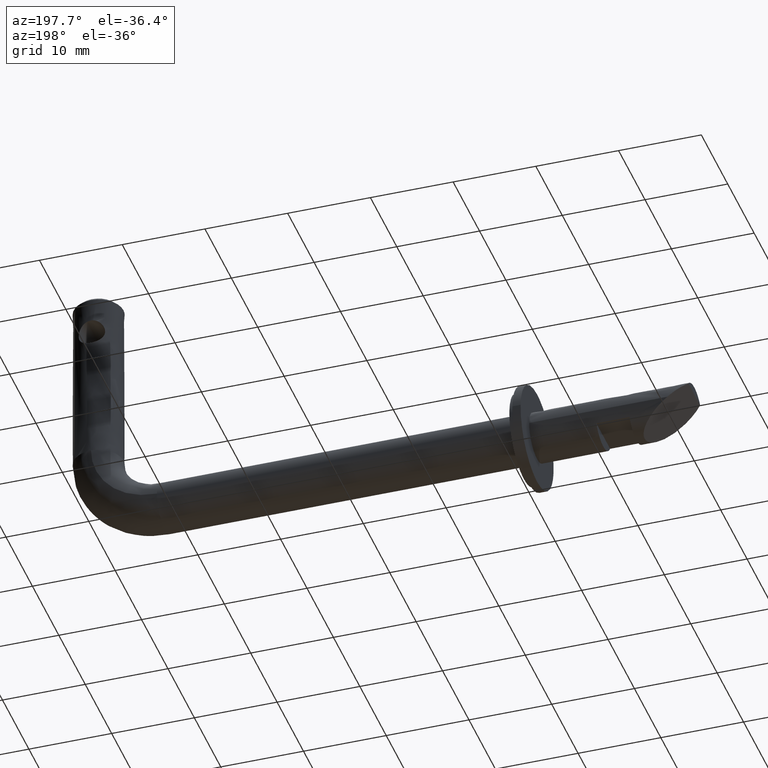
[diagram: clean part render]
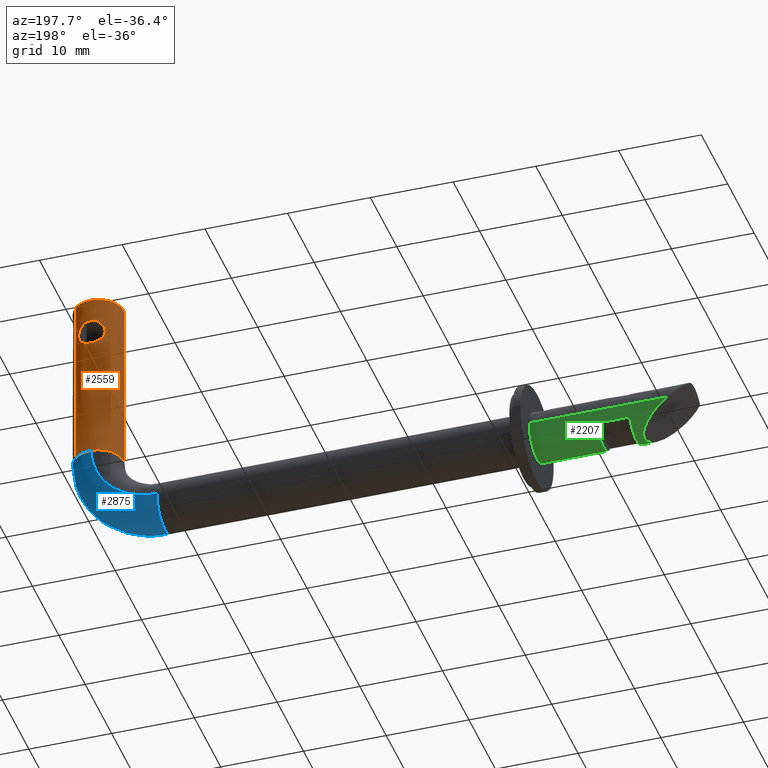
[diagram: same view with three faces highlighted in distinct colors, each labeled with its STEP entity id]
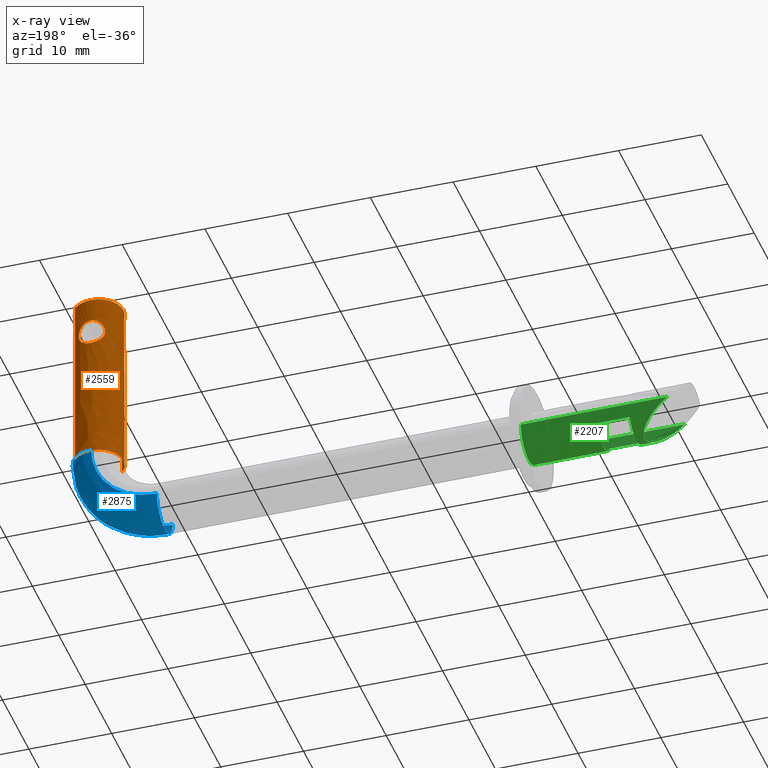
[diagram: x-ray of the same camera — body ghosted, the three highlighted faces saturated]
A machine part, auxiliary view with three faces highlighted in distinct colors.
The next image is the same camera in x-ray (body ghosted, the three faces saturated) — at least one of them is partly hidden behind the body in this view.
Their STEP definitions:

[orange] entity #2559 — the highlighted face is a freeform B-spline surface patch.
#1456=CARTESIAN_POINT('',(71.323144864201936,2.922654459481953,45.499999999945231));
#1457=VERTEX_POINT('',#1456);
#1458=CARTESIAN_POINT('',(71.999969000000092,3.000000000000007,45.500000000000000));
#1459=VERTEX_POINT('',#1458);
#1460=CARTESIAN_POINT('',(71.323144864201936,2.922654459481953,45.499999999945238));
#1461=CARTESIAN_POINT('',(71.657137517479583,3.000000000000007,45.500000000000000));
#1462=CARTESIAN_POINT('',(71.999969000000092,3.000000000000007,45.500000000000000));
#1470=(BOUNDED_CURVE()B_SPLINE_CURVE(2,(#1460,#1461,#1462),.UNSPECIFIED.,.F.,.U.)B_SPLINE_CURVE_WITH_KNOTS((3,3),(0.961422971732899,1.0),.UNSPECIFIED.)CURVE()GEOMETRIC_REPRESENTATION_ITEM()RATIONAL_B_SPLINE_CURVE((0.923556557359013,0.954804200074365,1.0))REPRESENTATION_ITEM(''));
#1471=EDGE_CURVE('',#1457,#1459,#1470,.T.);
#1529=CARTESIAN_POINT('',(69.000083230672885,0.026179607554547,45.499999999856072));
#1530=VERTEX_POINT('',#1529);
#1536=CARTESIAN_POINT('',(69.823845677467119,-2.065063506318367,45.500000000000000));
#1537=VERTEX_POINT('',#1536);
#1538=CARTESIAN_POINT('',(69.823845677467119,-2.065063506318367,45.500000000000000));
#1539=CARTESIAN_POINT('',(68.999969000000078,-1.196878285135874,45.500000000000000));
#1540=CARTESIAN_POINT('',(68.999969000000092,6.888411E-015,45.500000000000000));
#1541=CARTESIAN_POINT('',(68.999969000000092,0.013090053520332,45.500000000000000));
#1542=CARTESIAN_POINT('',(69.000083230672885,0.026179607554547,45.499999999856080));
#1550=(BOUNDED_CURVE()B_SPLINE_CURVE(2,(#1538,#1539,#1540,#1541,#1542),.UNSPECIFIED.,.F.,.U.)B_SPLINE_CURVE_WITH_KNOTS((3,2,3),(0.628950503960748,0.750000000000000,0.751539894459250),.UNSPECIFIED.)CURVE()GEOMETRIC_REPRESENTATION_ITEM()RATIONAL_B_SPLINE_CURVE((0.853699663636914,0.858181693877269,1.0,0.998195901420789,0.996414027812827))REPRESENTATION_ITEM(''));
#1551=EDGE_CURVE('',#1537,#1530,#1550,.T.);
#1568=CARTESIAN_POINT('',(74.176092322533066,2.065063506318381,45.500000000000000));
#1569=VERTEX_POINT('',#1568);
#1585=CARTESIAN_POINT('',(71.999969000000092,3.000000000000007,45.500000000000000));
#1586=CARTESIAN_POINT('',(73.288871078421280,3.000000000000007,45.500000000000014));
#1587=CARTESIAN_POINT('',(74.176092322533066,2.065063506318381,45.500000000000000));
#1595=(BOUNDED_CURVE()B_SPLINE_CURVE(2,(#1585,#1586,#1587),.UNSPECIFIED.,.F.,.U.)B_SPLINE_CURVE_WITH_KNOTS((3,3),(0.0,0.128950503960748),.UNSPECIFIED.)CURVE()GEOMETRIC_REPRESENTATION_ITEM()RATIONAL_B_SPLINE_CURVE((1.0,0.848925087309279,0.853699663636914))REPRESENTATION_ITEM(''));
#1596=EDGE_CURVE('',#1459,#1569,#1595,.T.);
#1615=CARTESIAN_POINT('',(69.000083230672885,0.026179607554547,45.499999999856072));
#1616=CARTESIAN_POINT('',(69.020707261520627,2.389459255069300,45.500000000000000));
#1617=CARTESIAN_POINT('',(71.323144864201936,2.922654459481953,45.499999999945224));
#1625=(BOUNDED_CURVE()B_SPLINE_CURVE(2,(#1615,#1616,#1617),.UNSPECIFIED.,.F.,.U.)B_SPLINE_CURVE_WITH_KNOTS((3,3),(0.751539894459250,0.961422971732900),.UNSPECIFIED.)CURVE()GEOMETRIC_REPRESENTATION_ITEM()RATIONAL_B_SPLINE_CURVE((0.996414027812826,0.753549905596298,0.923556557359015))REPRESENTATION_ITEM(''));
#1626=EDGE_CURVE('',#1530,#1457,#1625,.T.);
#1664=CARTESIAN_POINT('',(71.994331528390930,2.999994703147641,42.599990068379768));
#1665=VERTEX_POINT('',#1664);
#1666=CARTESIAN_POINT('',(73.587604077087263,2.545479398729322,41.198605947064912));
#1667=VERTEX_POINT('',#1666);
#1668=CARTESIAN_POINT('',(71.994331528390930,2.999994703147641,42.599990068379768));
#1669=CARTESIAN_POINT('',(72.047597322482943,3.000094798433264,42.600177727336330));
#1670=CARTESIAN_POINT('',(72.101354179923149,2.998765943240550,42.597690999701463));
#1671=CARTESIAN_POINT('',(72.208471195416237,2.993226143679104,42.587268708027032));
#1672=CARTESIAN_POINT('',(72.313985564740022,2.984893312388160,42.571563436398257));
#1673=CARTESIAN_POINT('',(72.416453465712209,2.971388915663970,42.545744348733670));
#1674=CARTESIAN_POINT('',(72.517434751334932,2.955476251282470,42.514930107730102));
#1675=CARTESIAN_POINT('',(72.567349082108834,2.946279591777827,42.496954378388288));
#1676=CARTESIAN_POINT('',(72.713737925457878,2.915557217938269,42.435866276198958));
#1677=CARTESIAN_POINT('',(72.805179601045637,2.891318828493735,42.386480368899221));
#1678=CARTESIAN_POINT('',(72.934036426026353,2.851233820786950,42.300070819110999));
#1679=CARTESIAN_POINT('',(72.975653616422036,2.837225415041942,42.269143172193722));
#1680=CARTESIAN_POINT('',(73.055858511598032,2.808363270009035,42.203237517295833));
#1681=CARTESIAN_POINT('',(73.093994396254445,2.793677141748251,42.168641986187552));
#1682=CARTESIAN_POINT('',(73.202831697554387,2.749407944350570,42.060007852296813));
#1683=CARTESIAN_POINT('',(73.268025310643054,2.719592991084082,41.981185053227406));
#1684=CARTESIAN_POINT('',(73.354889204433789,2.676792015835583,41.852554386464767));
#1685=CARTESIAN_POINT('',(73.381992838005203,2.662850296773818,41.807880675544510));
#1686=CARTESIAN_POINT('',(73.431335101486297,2.636655229448489,41.716833564764201));
#1687=CARTESIAN_POINT('',(73.453741040700791,2.624321043930565,41.670229770350304));
#1688=CARTESIAN_POINT('',(73.514207280896997,2.590212411308077,41.527060000525452));
#1689=CARTESIAN_POINT('',(73.545614910046126,2.571302007438929,41.427147687669233));
#1690=CARTESIAN_POINT('',(73.575646260550556,2.552902509534422,41.281017511631283));
#1691=CARTESIAN_POINT('',(73.582439640397936,2.548696877225920,41.239855934344369));
#1692=CARTESIAN_POINT('',(73.587604077087263,2.545479398729322,41.198605947064912));
#1693=B_SPLINE_CURVE_WITH_KNOTS('',3,(#1668,#1669,#1670,#1671,#1672,#1673,#1674,#1675,#1676,#1677,#1678,#1679,#1680,#1681,#1682,#1683,#1684,#1685,#1686,#1687,#1688,#1689,#1690,#1691,#1692),.UNSPECIFIED.,.F.,.U.,(4,2,1,2,2,2,2,2,2,2,2,2,4),(0.500000000000061,0.515625000000060,0.531250000000060,0.546875000000059,0.562500000000058,0.593750000000053,0.609375000000052,0.625000000000051,0.656250000000053,0.671875000000053,0.687500000000053,0.718750000000051,0.730967443694263),.UNSPECIFIED.);
#1694=EDGE_CURVE('',#1665,#1667,#1693,.T.);
#1763=CARTESIAN_POINT('',(70.400029794789674,2.537753961033253,40.986037542234328));
#1764=VERTEX_POINT('',#1763);
#1770=CARTESIAN_POINT('',(70.400029794789674,2.537753961033253,40.986037542234328));
#1771=CARTESIAN_POINT('',(70.400002909320236,2.537736959690668,40.989122623426837));
#1772=CARTESIAN_POINT('',(70.399984988830681,2.537725588813220,40.992209067010378));
#1773=CARTESIAN_POINT('',(70.399819113183753,2.537621006785857,41.048639596513361));
#1774=CARTESIAN_POINT('',(70.402376161701270,2.539239075206544,41.102776727903141));
#1775=CARTESIAN_POINT('',(70.412819111122332,2.545779485398318,41.209335049663522));
#1776=CARTESIAN_POINT('',(70.428499716294752,2.555565302606940,41.314403466990768));
#1777=CARTESIAN_POINT('',(70.454270543567645,2.571213076018931,41.416650394664337));
#1778=CARTESIAN_POINT('',(70.485062189522907,2.589474416957665,41.517531279403919));
#1779=CARTESIAN_POINT('',(70.503077908853314,2.599971811698226,41.567503497107353));
#1780=CARTESIAN_POINT('',(70.563555860512906,2.634172115528542,41.712523630936623));
#1781=CARTESIAN_POINT('',(70.612510108893687,2.660650773724477,41.803511676603762));
#1782=CARTESIAN_POINT('',(70.698651353788506,2.703257028515055,41.932330778691522));
#1783=CARTESIAN_POINT('',(70.729638300666863,2.718003321669526,41.974119680139388));
#1784=CARTESIAN_POINT('',(70.794873339784502,2.747549197376554,42.053752194129537));
#1785=CARTESIAN_POINT('',(70.829207092336290,2.762396307594826,42.091756210529148));
#1786=CARTESIAN_POINT('',(70.937365576671411,2.806588887480753,42.200555802698197));
#1787=CARTESIAN_POINT('',(71.016458885684301,2.835645682963125,42.266321744173247));
#1788=CARTESIAN_POINT('',(71.189051610244348,2.889739014385311,42.383212164390962));
#1789=CARTESIAN_POINT('',(71.280025565096295,2.913979800689734,42.432658611702713));
#1790=CARTESIAN_POINT('',(71.423755521203745,2.944550429849286,42.493547903028272));
#1791=CARTESIAN_POINT('',(71.472885180570216,2.953775750627693,42.511612707901570));
#1792=CARTESIAN_POINT('',(71.573735278781768,2.970005614910075,42.543086240717187));
#1793=CARTESIAN_POINT('',(71.625804374912249,2.977038073690190,42.556547105287393));
#1794=CARTESIAN_POINT('',(71.782355097181281,2.993937812442399,42.588709041921348));
#1795=CARTESIAN_POINT('',(71.887799612137101,2.999794512576420,42.599614709391510));
#1796=CARTESIAN_POINT('',(71.994331528390930,2.999994703147641,42.599990068379768));
#1797=B_SPLINE_CURVE_WITH_KNOTS('',3,(#1770,#1771,#1772,#1773,#1774,#1775,#1776,#1777,#1778,#1779,#1780,#1781,#1782,#1783,#1784,#1785,#1786,#1787,#1788,#1789,#1790,#1791,#1792,#1793,#1794,#1795,#1796),.UNSPECIFIED.,.F.,.U.,(4,2,2,1,2,2,2,2,2,2,2,2,2,4),(0.249095528264644,0.250000000000037,0.265625000000037,0.281250000000037,0.296875000000037,0.312500000000037,0.343750000000040,0.359375000000043,0.375000000000046,0.406250000000049,0.437500000000052,0.453125000000055,0.468750000000059,0.500000000000061),.UNSPECIFIED.);
#1798=EDGE_CURVE('',#1764,#1665,#1797,.T.);
#1825=CARTESIAN_POINT('',(71.999969000000107,3.0,39.399999999999999));
#1826=VERTEX_POINT('',#1825);
#1827=CARTESIAN_POINT('',(73.587604077087263,2.545479398729322,41.198605947064912));
#1828=CARTESIAN_POINT('',(73.595649688624306,2.540467152126669,41.134346010408422));
#1829=CARTESIAN_POINT('',(73.599742182966423,2.537852954808776,41.069871520361062));
#1830=CARTESIAN_POINT('',(73.600124185431113,2.537612312452980,40.952076577708958));
#1831=CARTESIAN_POINT('',(73.597659719644597,2.539172134263927,40.898825164402318));
#1832=CARTESIAN_POINT('',(73.589885265580662,2.544042035819182,40.818725347553240));
#1833=CARTESIAN_POINT('',(73.586597902895178,2.546095976734909,40.791907084465237));
#1834=CARTESIAN_POINT('',(73.578734625337987,2.550979372163208,40.738860590229883));
#1835=CARTESIAN_POINT('',(73.574157613474128,2.553809523874047,40.712576579268131));
#1836=CARTESIAN_POINT('',(73.548131361137052,2.569779637262166,40.582309403562569));
#1837=CARTESIAN_POINT('',(73.517364426442811,2.588369217390258,40.481754570004277));
#1838=CARTESIAN_POINT('',(73.456611353817962,2.622730590791948,40.335961320486923));
#1839=CARTESIAN_POINT('',(73.434044129393229,2.635182031088402,40.288590164765949));
#1840=CARTESIAN_POINT('',(73.384940414621056,2.661317658887617,40.197172894321326));
#1841=CARTESIAN_POINT('',(73.331723257101359,2.688768109910823,40.108731353226887));
#1842=CARTESIAN_POINT('',(73.270344169950860,2.717982674106730,40.025930275714082));
#1843=CARTESIAN_POINT('',(73.204766173314610,2.747680527877822,39.945898349797652));
#1844=CARTESIAN_POINT('',(73.170011217863021,2.762702169089690,39.907466030899229));
#1845=CARTESIAN_POINT('',(73.061284752237015,2.807085735011881,39.798269814068931));
#1846=CARTESIAN_POINT('',(72.982380036351870,2.836007914577849,39.732881740330740));
#1847=CARTESIAN_POINT('',(72.853718010456618,2.876304493930390,39.645824907312111));
#1848=CARTESIAN_POINT('',(72.808824022440845,2.889292755174188,39.618518909092451));
#1849=CARTESIAN_POINT('',(72.716802512404186,2.913487569447392,39.568606589973271));
#1850=CARTESIAN_POINT('',(72.669769787012456,2.924684237807802,39.546010370943350));
#1851=CARTESIAN_POINT('',(72.525579743391646,2.955230419275068,39.485200942770653));
#1852=CARTESIAN_POINT('',(72.425363211269669,2.971554316300569,39.453886233828641));
#1853=CARTESIAN_POINT('',(72.268260331084761,2.988443316062709,39.421748815155411));
#1854=CARTESIAN_POINT('',(72.214790128327166,2.992778029234917,39.413575831239619));
#1855=CARTESIAN_POINT('',(72.107825097037235,2.998538926891856,39.402734558392268));
#1856=CARTESIAN_POINT('',(72.053899697139400,3.000000000000008,39.399999983575142));
#1857=CARTESIAN_POINT('',(71.999969000000107,3.0,39.399999999999999));
#1858=B_SPLINE_CURVE_WITH_KNOTS('',3,(#1827,#1828,#1829,#1830,#1831,#1832,#1833,#1834,#1835,#1836,#1837,#1838,#1839,#1840,#1841,#1842,#1843,#1844,#1845,#1846,#1847,#1848,#1849,#1850,#1851,#1852,#1853,#1854,#1855,#1856,#1857),.UNSPECIFIED.,.F.,.U.,(4,2,2,2,2,2,2,1,2,2,2,2,2,2,2,4),(0.730967443694264,0.750000000000049,0.765625000000047,0.773437500000045,0.781250000000043,0.812500000000035,0.828125000000031,0.843750000000028,0.859375000000024,0.875000000000020,0.906250000000012,0.921875000000010,0.937500000000008,0.968750000000004,0.984375000000002,1.0),.UNSPECIFIED.);
#1859=EDGE_CURVE('',#1667,#1826,#1858,.T.);
#1861=CARTESIAN_POINT('',(71.999969000000107,3.0,39.399999999999999));
#1862=CARTESIAN_POINT('',(71.892107343347050,3.0,39.399999999999999));
#1863=CARTESIAN_POINT('',(71.786420061271670,2.994204917263775,39.410792273531833));
#1864=CARTESIAN_POINT('',(71.630934719092110,2.977671952795410,39.442242064282993));
#1865=CARTESIAN_POINT('',(71.579617436550720,2.970850191223982,39.455289461521303));
#1866=CARTESIAN_POINT('',(71.478009877461147,2.954692026250503,39.486598282352020));
#1867=CARTESIAN_POINT('',(71.428216243238566,2.945425506056949,39.504727791274803));
#1868=CARTESIAN_POINT('',(71.283445705051378,2.914845600400939,39.565581950755913));
#1869=CARTESIAN_POINT('',(71.192263725232252,2.890633395318389,39.614934205100809));
#1870=CARTESIAN_POINT('',(71.063004541658046,2.850286812420503,39.702002938918717));
#1871=CARTESIAN_POINT('',(71.021325421069150,2.836200857916569,39.733152812670333));
#1872=CARTESIAN_POINT('',(70.941987182333463,2.807570664207084,39.798617661144213));
#1873=CARTESIAN_POINT('',(70.904122491816409,2.792963022273581,39.833066471089452));
#1874=CARTESIAN_POINT('',(70.831864131305679,2.763521852458990,39.905402153242377));
#1875=CARTESIAN_POINT('',(70.797470575837622,2.748687411044953,39.943288771992052));
#1876=CARTESIAN_POINT('',(70.732136764073744,2.719170161151406,40.022634919256276));
#1877=CARTESIAN_POINT('',(70.701067373263115,2.704419472692852,40.064310716988359));
#1878=CARTESIAN_POINT('',(70.614723606991731,2.661806845364610,40.192699137693843));
#1879=CARTESIAN_POINT('',(70.565822429570588,2.635405590228977,40.283075200480113));
#1880=CARTESIAN_POINT('',(70.505405051305715,2.601309930762633,40.426442686670811));
#1881=CARTESIAN_POINT('',(70.487440132549438,2.590866279601660,40.475542509073676));
#1882=CARTESIAN_POINT('',(70.463933005029617,2.576950976555259,40.551342858275021));
#1883=CARTESIAN_POINT('',(70.456665953794072,2.572600792702131,40.577012137747282));
#1884=CARTESIAN_POINT('',(70.443498017161716,2.564655378529938,40.628380431591609));
#1885=CARTESIAN_POINT('',(70.437569102545581,2.561043720083624,40.654161674266390));
#1886=CARTESIAN_POINT('',(70.411772010728058,2.545232662595836,40.780557578353957));
#1887=CARTESIAN_POINT('',(70.400927384093521,2.538324366010588,40.882531324051087));
#1888=CARTESIAN_POINT('',(70.400029794789674,2.537753961033253,40.986037542234328));
#1889=B_SPLINE_CURVE_WITH_KNOTS('',3,(#1861,#1862,#1863,#1864,#1865,#1866,#1867,#1868,#1869,#1870,#1871,#1872,#1873,#1874,#1875,#1876,#1877,#1878,#1879,#1880,#1881,#1882,#1883,#1884,#1885,#1886,#1887,#1888),.UNSPECIFIED.,.F.,.U.,(4,2,2,2,2,2,2,2,2,2,2,2,2,4),(0.0,0.031250000000004,0.046875000000008,0.062500000000013,0.093750000000020,0.109375000000022,0.125000000000024,0.140625000000025,0.156250000000027,0.187500000000030,0.203125000000032,0.210937500000033,0.218750000000034,0.249095528264644),.UNSPECIFIED.);
#1890=EDGE_CURVE('',#1826,#1764,#1889,.T.);
#2412=CARTESIAN_POINT('',(69.823845221315906,-2.065063025634889,24.0));
#2413=VERTEX_POINT('',#2412);
#2446=CARTESIAN_POINT('',(74.176092778684279,2.065063025634894,24.0));
#2447=VERTEX_POINT('',#2446);
#2461=CARTESIAN_POINT('',(74.176092778684279,2.065063025634894,24.0));
#2462=CARTESIAN_POINT('',(74.176092322533066,2.065063506318381,45.500000000000000));
#2463=QUASI_UNIFORM_CURVE('',1,(#2461,#2462),.UNSPECIFIED.,.F.,.U.);
#2464=EDGE_CURVE('',#2447,#1569,#2463,.T.);
#2468=CARTESIAN_POINT('',(69.823845221315906,-2.065063025634889,24.0));
#2469=CARTESIAN_POINT('',(69.823845677467119,-2.065063506318367,45.500000000000000));
#2470=QUASI_UNIFORM_CURVE('',1,(#2468,#2469),.UNSPECIFIED.,.F.,.U.);
#2471=EDGE_CURVE('',#2413,#1537,#2470,.T.);
#2482=CARTESIAN_POINT('',(74.176092113036958,2.065063727081264,23.462499999561530));
#2483=CARTESIAN_POINT('',(72.111028385955677,4.241186840118128,23.462499999561533));
#2484=CARTESIAN_POINT('',(69.934905272918826,2.176123113036865,23.462499999561530));
#2485=CARTESIAN_POINT('',(67.758782159881960,0.111059385955604,23.462499999561533));
#2486=CARTESIAN_POINT('',(69.823845886963227,-2.065063727081258,23.462499999561530));
#2487=CARTESIAN_POINT('',(74.176092113036958,2.065063727081268,46.050937500010967));
#2488=CARTESIAN_POINT('',(72.111028385955677,4.241186840118131,46.050937500010981));
#2489=CARTESIAN_POINT('',(69.934905272918826,2.176123113036869,46.050937500010967));
#2490=CARTESIAN_POINT('',(67.758782159881960,0.111059385955608,46.050937500010981));
#2491=CARTESIAN_POINT('',(69.823845886963227,-2.065063727081254,46.050937500010967));
#2499=(BOUNDED_SURFACE()B_SPLINE_SURFACE(2,1,((#2482,#2487),(#2483,#2488),(#2484,#2489),(#2485,#2490),(#2486,#2491)),.UNSPECIFIED.,.F.,.F.,.U.)B_SPLINE_SURFACE_WITH_KNOTS((3,2,3),(2,2),(0.0,4.970562748477149,9.941125496954298),(0.0,22.588437500449452),.UNSPECIFIED.)GEOMETRIC_REPRESENTATION_ITEM()RATIONAL_B_SPLINE_SURFACE(((1.0,1.0),(0.707106781186548,0.707106781186548),(1.0,1.0),(0.707106781186548,0.707106781186548),(1.0,1.0)))REPRESENTATION_ITEM('')SURFACE());
#2500=CARTESIAN_POINT('',(68.999969000000092,2.939055E-015,24.0));
#2501=VERTEX_POINT('',#2500);
#2502=CARTESIAN_POINT('',(68.999969000000092,2.939055E-015,24.0));
#2503=CARTESIAN_POINT('',(68.999969000000078,-1.196877516990546,23.999999999999996));
#2504=CARTESIAN_POINT('',(69.823845221315906,-2.065063025634889,24.0));
#2512=(BOUNDED_CURVE()B_SPLINE_CURVE(2,(#2502,#2503,#2504),.UNSPECIFIED.,.F.,.U.)B_SPLINE_CURVE_WITH_KNOTS((3,3),(0.0,0.121049429368450),.UNSPECIFIED.)CURVE()GEOMETRIC_REPRESENTATION_ITEM()RATIONAL_B_SPLINE_CURVE((1.0,0.858181771986972,0.853699668574118))REPRESENTATION_ITEM(''));
#2513=EDGE_CURVE('',#2501,#2413,#2512,.T.);
#2514=ORIENTED_EDGE('',*,*,#2513,.T.);
#2515=ORIENTED_EDGE('',*,*,#2471,.T.);
#2516=ORIENTED_EDGE('',*,*,#1551,.T.);
#2517=ORIENTED_EDGE('',*,*,#1626,.T.);
#2518=ORIENTED_EDGE('',*,*,#1471,.T.);
#2519=ORIENTED_EDGE('',*,*,#1596,.T.);
#2520=ORIENTED_EDGE('',*,*,#2464,.F.);
#2521=CARTESIAN_POINT('',(71.962270880339787,2.999763132611323,23.999999999950031));
#2522=VERTEX_POINT('',#2521);
#2523=CARTESIAN_POINT('',(74.176092778684279,2.065063025634894,24.000000000000004));
#2524=CARTESIAN_POINT('',(73.288871863409653,3.000000000000003,24.000000000000004));
#2525=CARTESIAN_POINT('',(71.999969000000092,3.000000000000003,24.0));
#2526=CARTESIAN_POINT('',(71.981119196014191,3.000000000000003,24.000000000000004));
#2527=CARTESIAN_POINT('',(71.962270880339787,2.999763132611323,23.999999999950028));
#2535=(BOUNDED_CURVE()B_SPLINE_CURVE(2,(#2523,#2524,#2525,#2526,#2527),.UNSPECIFIED.,.F.,.U.)B_SPLINE_CURVE_WITH_KNOTS((3,2,3),(0.621049429368450,0.750000000000000,0.752215704079473),.UNSPECIFIED.)CURVE()GEOMETRIC_REPRESENTATION_ITEM()RATIONAL_B_SPLINE_CURVE((0.853699668574118,0.848925009199575,1.0,0.997404141200901,0.994854295641249))REPRESENTATION_ITEM(''));
#2536=EDGE_CURVE('',#2447,#2522,#2535,.T.);
#2537=ORIENTED_EDGE('',*,*,#2536,.T.);
#2538=CARTESIAN_POINT('',(71.962270880339787,2.999763132611323,23.999999999950031));
#2539=CARTESIAN_POINT('',(68.999969000000078,2.962535789701709,24.000000000000004));
#2540=CARTESIAN_POINT('',(68.999969000000092,2.939055E-015,24.0));
#2548=(BOUNDED_CURVE()B_SPLINE_CURVE(2,(#2538,#2539,#2540),.UNSPECIFIED.,.F.,.U.)B_SPLINE_CURVE_WITH_KNOTS((3,3),(0.752215704079473,1.0),.UNSPECIFIED.)CURVE()GEOMETRIC_REPRESENTATION_ITEM()RATIONAL_B_SPLINE_CURVE((0.994854295641248,0.709702639985647,1.0))REPRESENTATION_ITEM(''));
#2549=EDGE_CURVE('',#2522,#2501,#2548,.T.);
#2550=ORIENTED_EDGE('',*,*,#2549,.T.);
#2551=EDGE_LOOP('',(#2514,#2515,#2516,#2517,#2518,#2519,#2520,#2537,#2550));
#2552=FACE_OUTER_BOUND('',#2551,.T.);
#2553=ORIENTED_EDGE('',*,*,#1890,.F.);
#2554=ORIENTED_EDGE('',*,*,#1859,.F.);
#2555=ORIENTED_EDGE('',*,*,#1694,.F.);
#2556=ORIENTED_EDGE('',*,*,#1798,.F.);
#2557=EDGE_LOOP('',(#2553,#2554,#2555,#2556));
#2558=FACE_BOUND('',#2557,.T.);
#2559=ADVANCED_FACE('',(#2552,#2558),#2499,.T.);

[blue] entity #2875 — the highlighted face is a freeform B-spline surface patch.
#2414=CARTESIAN_POINT('',(72.209168756498087,-2.992697021397447,23.999999999572228));
#2415=VERTEX_POINT('',#2414);
#2431=CARTESIAN_POINT('',(74.999969000000092,2.939055E-015,24.0));
#2432=VERTEX_POINT('',#2431);
#2433=CARTESIAN_POINT('',(72.209168756498087,-2.992697021397448,23.999999999572232));
#2434=CARTESIAN_POINT('',(74.999969000000092,-2.797610538479417,24.0));
#2435=CARTESIAN_POINT('',(74.999969000000092,2.939055E-015,24.0));
#2443=(BOUNDED_CURVE()B_SPLINE_CURVE(2,(#2433,#2434,#2435),.UNSPECIFIED.,.F.,.U.)B_SPLINE_CURVE_WITH_KNOTS((3,3),(0.262166313668492,0.500000000000000),.UNSPECIFIED.)CURVE()GEOMETRIC_REPRESENTATION_ITEM()RATIONAL_B_SPLINE_CURVE((0.972879875956379,0.721360504272382,1.0))REPRESENTATION_ITEM(''));
#2444=EDGE_CURVE('',#2415,#2432,#2443,.T.);
#2446=CARTESIAN_POINT('',(74.176092778684279,2.065063025634894,24.0));
#2447=VERTEX_POINT('',#2446);
#2448=CARTESIAN_POINT('',(74.999969000000092,2.939055E-015,24.0));
#2449=CARTESIAN_POINT('',(74.999969000000092,1.196877516990545,24.000000000000004));
#2450=CARTESIAN_POINT('',(74.176092778684279,2.065063025634894,24.000000000000004));
#2458=(BOUNDED_CURVE()B_SPLINE_CURVE(2,(#2448,#2449,#2450),.UNSPECIFIED.,.F.,.U.)B_SPLINE_CURVE_WITH_KNOTS((3,3),(0.500000000000000,0.621049429368449),.UNSPECIFIED.)CURVE()GEOMETRIC_REPRESENTATION_ITEM()RATIONAL_B_SPLINE_CURVE((1.0,0.858181771986973,0.853699668574118))REPRESENTATION_ITEM(''));
#2459=EDGE_CURVE('',#2432,#2447,#2458,.T.);
#2521=CARTESIAN_POINT('',(71.962270880339787,2.999763132611323,23.999999999950031));
#2522=VERTEX_POINT('',#2521);
#2523=CARTESIAN_POINT('',(74.176092778684279,2.065063025634894,24.000000000000004));
#2524=CARTESIAN_POINT('',(73.288871863409653,3.000000000000003,24.000000000000004));
#2525=CARTESIAN_POINT('',(71.999969000000092,3.000000000000003,24.0));
#2526=CARTESIAN_POINT('',(71.981119196014191,3.000000000000003,24.000000000000004));
#2527=CARTESIAN_POINT('',(71.962270880339787,2.999763132611323,23.999999999950028));
#2535=(BOUNDED_CURVE()B_SPLINE_CURVE(2,(#2523,#2524,#2525,#2526,#2527),.UNSPECIFIED.,.F.,.U.)B_SPLINE_CURVE_WITH_KNOTS((3,2,3),(0.621049429368450,0.750000000000000,0.752215704079473),.UNSPECIFIED.)CURVE()GEOMETRIC_REPRESENTATION_ITEM()RATIONAL_B_SPLINE_CURVE((0.853699668574118,0.848925009199575,1.0,0.997404141200901,0.994854295641249))REPRESENTATION_ITEM(''));
#2536=EDGE_CURVE('',#2447,#2522,#2535,.T.);
#2584=CARTESIAN_POINT('',(63.999969000046633,-2.992697021497719,15.790800244936440));
#2585=VERTEX_POINT('',#2584);
#2649=CARTESIAN_POINT('',(63.999969000318423,2.999763132605458,16.037698120126990));
#2650=VERTEX_POINT('',#2649);
#2664=CARTESIAN_POINT('',(63.999969000000100,2.939055E-015,13.0));
#2665=VERTEX_POINT('',#2664);
#2666=CARTESIAN_POINT('',(63.999969000000100,2.939055E-015,13.0));
#2667=CARTESIAN_POINT('',(63.999969000000100,3.000000000000003,13.000000000000004));
#2668=CARTESIAN_POINT('',(63.999969000000100,3.000000000000003,16.0));
#2669=CARTESIAN_POINT('',(63.999969000000107,3.000000000000003,16.018849804452653));
#2670=CARTESIAN_POINT('',(63.999969000318416,2.999763132605458,16.037698120126986));
#2678=(BOUNDED_CURVE()B_SPLINE_CURVE(2,(#2666,#2667,#2668,#2669,#2670),.UNSPECIFIED.,.F.,.U.)B_SPLINE_CURVE_WITH_KNOTS((3,2,3),(0.500000000000000,0.750000000000000,0.752215704134193),.UNSPECIFIED.)CURVE()GEOMETRIC_REPRESENTATION_ITEM()RATIONAL_B_SPLINE_CURVE((1.0,0.707106781186548,1.0,0.997404141136791,0.994854295515303))REPRESENTATION_ITEM(''));
#2679=EDGE_CURVE('',#2665,#2650,#2678,.T.);
#2681=CARTESIAN_POINT('',(63.999969000046626,-2.992697021497719,15.790800244936442));
#2682=CARTESIAN_POINT('',(63.999969000000107,-2.797610541167816,13.000000000000004));
#2683=CARTESIAN_POINT('',(63.999969000000100,2.939055E-015,13.0));
#2691=(BOUNDED_CURVE()B_SPLINE_CURVE(2,(#2681,#2682,#2683),.UNSPECIFIED.,.F.,.U.)B_SPLINE_CURVE_WITH_KNOTS((3,3),(0.262166313503625,0.500000000000000),.UNSPECIFIED.)CURVE()GEOMETRIC_REPRESENTATION_ITEM()RATIONAL_B_SPLINE_CURVE((0.972879876305086,0.721360504079229,1.0))REPRESENTATION_ITEM(''));
#2692=EDGE_CURVE('',#2585,#2665,#2691,.T.);
#2804=CARTESIAN_POINT('',(63.999969000318416,2.999763132605458,16.037698120126990));
#2805=CARTESIAN_POINT('',(71.962270880250117,2.999763132611451,16.037698120286699));
#2806=CARTESIAN_POINT('',(71.962270880339787,2.999763132611323,23.999999999950031));
#2814=(BOUNDED_CURVE()B_SPLINE_CURVE(2,(#2804,#2805,#2806),.UNSPECIFIED.,.F.,.U.)B_SPLINE_CURVE_WITH_KNOTS((3,3),(-1.734750791575320,-0.265249208354641),.UNSPECIFIED.)CURVE()GEOMETRIC_REPRESENTATION_ITEM()RATIONAL_B_SPLINE_CURVE((0.889029723546998,0.628638946234336,0.889029723571820))REPRESENTATION_ITEM(''));
#2815=EDGE_CURVE('',#2650,#2522,#2814,.T.);
#2821=CARTESIAN_POINT('',(63.999969000046633,-2.992697021497719,15.790800244936435));
#2822=CARTESIAN_POINT('',(72.209168753870884,-2.992697021521292,15.790800245366729));
#2823=CARTESIAN_POINT('',(72.209168756498102,-2.992697021397447,23.999999999572225));
#2831=(BOUNDED_CURVE()B_SPLINE_CURVE(2,(#2821,#2822,#2823),.UNSPECIFIED.,.F.,.U.)B_SPLINE_CURVE_WITH_KNOTS((3,3),(-1.734750791646623,-0.265249208449890),.UNSPECIFIED.)CURVE()GEOMETRIC_REPRESENTATION_ITEM()RATIONAL_B_SPLINE_CURVE((0.869031711871179,0.614498216553948,0.869031711837745))REPRESENTATION_ITEM(''));
#2832=EDGE_CURVE('',#2585,#2415,#2831,.T.);
#2837=CARTESIAN_POINT('',(63.449266448150588,2.999225874141813,16.099619870415729));
#2838=CARTESIAN_POINT('',(72.533578903998304,2.999225874141815,15.466390333459646));
#2839=CARTESIAN_POINT('',(71.900349114260408,2.999225874141814,24.550702771686964));
#2840=CARTESIAN_POINT('',(63.447784443583096,2.999493708142639,16.078359029335981));
#2841=CARTESIAN_POINT('',(72.556543839992457,2.999493708142640,15.443425398104505));
#2842=CARTESIAN_POINT('',(71.921609955298919,2.999493708142639,24.552184776846087));
#2843=CARTESIAN_POINT('',(63.237698817308079,3.037461252261510,13.064470130946063));
#2844=CARTESIAN_POINT('',(75.812001391527232,3.037461252261510,12.187967937156714));
#2845=CARTESIAN_POINT('',(74.935498847842950,3.037461252261509,24.762270486986111));
#2846=CARTESIAN_POINT('',(63.235077399489548,0.037698119650063,13.026863264634571));
#2847=CARTESIAN_POINT('',(75.852622516276952,0.037698119650063,12.147346813537315));
#2848=CARTESIAN_POINT('',(74.973105714081512,0.037698119650063,24.764891905851094));
#2849=CARTESIAN_POINT('',(63.232601854555220,-2.795138513519087,12.991349091069418));
#2850=CARTESIAN_POINT('',(75.890983215166969,-2.795138513519086,12.108986115714696));
#2851=CARTESIAN_POINT('',(75.008619887577794,-2.795138513519087,24.767367451773655));
#2852=CARTESIAN_POINT('',(63.430617215010201,-2.994197020180111,15.832077927057117));
#2853=CARTESIAN_POINT('',(72.822564818616570,-2.994197020180112,15.177404426882740));
#2854=CARTESIAN_POINT('',(72.167891057100107,-2.994197020180111,24.569352012272041));
#2855=CARTESIAN_POINT('',(63.432101221105292,-2.995688844028943,15.853367482056171));
#2856=CARTESIAN_POINT('',(72.799568867230462,-2.995688844028944,15.200400377628958));
#2857=CARTESIAN_POINT('',(72.146601502142360,-2.995688844028944,24.567868005584561));
#2865=(BOUNDED_SURFACE()B_SPLINE_SURFACE(2,2,((#2837,#2840,#2843,#2846,#2849,#2852,#2855),(#2838,#2841,#2844,#2847,#2850,#2853,#2856),(#2839,#2842,#2845,#2848,#2851,#2854,#2857)),.UNSPECIFIED.,.F.,.F.,.U.)B_SPLINE_SURFACE_WITH_KNOTS((3,3),(3,1,2,1,3),(0.0,20.045681424940110),(0.0,0.050387808670384,5.020950557147532,9.792690795685594,9.842094314755919),.UNSPECIFIED.)GEOMETRIC_REPRESENTATION_ITEM()RATIONAL_B_SPLINE_SURFACE(((0.921783573034680,0.919062834137807,0.647951709431553,0.916342095240933,0.658687324863928,0.898183897532678,0.900638081454583),(0.604897402374755,0.603111985559568,0.425202094466791,0.601326568744382,0.432247073437895,0.589410705903206,0.591021202686548),(0.921783584720526,0.919062845789161,0.647951717645915,0.916342106857795,0.658687333214390,0.898183908919341,0.900638092872359)))REPRESENTATION_ITEM('')SURFACE());
#2866=ORIENTED_EDGE('',*,*,#2444,.F.);
#2867=ORIENTED_EDGE('',*,*,#2832,.F.);
#2868=ORIENTED_EDGE('',*,*,#2692,.T.);
#2869=ORIENTED_EDGE('',*,*,#2679,.T.);
#2870=ORIENTED_EDGE('',*,*,#2815,.T.);
#2871=ORIENTED_EDGE('',*,*,#2536,.F.);
#2872=ORIENTED_EDGE('',*,*,#2459,.F.);
#2873=EDGE_LOOP('',(#2866,#2867,#2868,#2869,#2870,#2871,#2872));
#2874=FACE_OUTER_BOUND('',#2873,.T.);
#2875=ADVANCED_FACE('',(#2874),#2865,.T.);

[green] entity #2207 — the highlighted face is a freeform B-spline surface patch.
#1984=CARTESIAN_POINT('',(2.328977768675013,2.999416133087530,16.059184969147729));
#1985=VERTEX_POINT('',#1984);
#2018=CARTESIAN_POINT('',(2.054955239910358,-2.986188168138725,16.287541691669951));
#2019=VERTEX_POINT('',#2018);
#2033=CARTESIAN_POINT('',(20.0,-2.986188595090436,16.287537257675929));
#2034=VERTEX_POINT('',#2033);
#2035=CARTESIAN_POINT('',(2.054955239910358,-2.986188168138725,16.287541691669951));
#2036=CARTESIAN_POINT('',(20.0,-2.986188595090436,16.287537257675929));
#2037=QUASI_UNIFORM_CURVE('',1,(#2035,#2036),.UNSPECIFIED.,.F.,.U.);
#2038=EDGE_CURVE('',#2019,#2034,#2037,.T.);
#2055=CARTESIAN_POINT('',(20.0,2.999416154967890,16.059183860280029));
#2056=VERTEX_POINT('',#2055);
#2070=CARTESIAN_POINT('',(2.328977768675013,2.999416133087530,16.059184969147729));
#2071=CARTESIAN_POINT('',(20.0,2.999416154967890,16.059183860280029));
#2072=QUASI_UNIFORM_CURVE('',1,(#2070,#2071),.UNSPECIFIED.,.F.,.U.);
#2073=EDGE_CURVE('',#1985,#2056,#2072,.T.);
#2078=CARTESIAN_POINT('',(1.158600177670385,-2.981984732352609,16.331196041478638));
#2079=CARTESIAN_POINT('',(1.158600177670386,-2.984080279853597,16.309432948580579));
#2080=CARTESIAN_POINT('',(1.158600177670384,-3.273725852662200,13.301348662459123));
#2081=CARTESIAN_POINT('',(1.158600177670384,-0.287537257560664,13.013811404898460));
#2082=CARTESIAN_POINT('',(1.158600177670384,2.698651337540873,12.726274147337794));
#2083=CARTESIAN_POINT('',(1.158600177670385,2.986188595101539,15.712462742439330));
#2084=CARTESIAN_POINT('',(1.158600177670386,3.002844415595046,15.885440051959909));
#2085=CARTESIAN_POINT('',(1.158600177670386,2.998960086278316,16.082297362899215));
#2086=CARTESIAN_POINT('',(1.158600177670385,2.998501559752539,16.105535428340747));
#2087=CARTESIAN_POINT('',(20.512500000000006,-2.981984732352609,16.331196041478638));
#2088=CARTESIAN_POINT('',(20.512500000000006,-2.984080279853597,16.309432948580579));
#2089=CARTESIAN_POINT('',(20.512499999999999,-3.273725852662200,13.301348662459123));
#2090=CARTESIAN_POINT('',(20.512499999999999,-0.287537257560664,13.013811404898460));
#2091=CARTESIAN_POINT('',(20.512499999999999,2.698651337540873,12.726274147337792));
#2092=CARTESIAN_POINT('',(20.512499999999999,2.986188595101539,15.712462742439330));
#2093=CARTESIAN_POINT('',(20.512500000000010,3.002844415595046,15.885440051959899));
#2094=CARTESIAN_POINT('',(20.512500000000003,2.998960086278316,16.082297362899215));
#2095=CARTESIAN_POINT('',(20.512500000000006,2.998501559752539,16.105535428340747));
#2103=(BOUNDED_SURFACE()B_SPLINE_SURFACE(2,1,((#2078,#2087),(#2079,#2088),(#2080,#2089),(#2081,#2090),(#2082,#2091),(#2083,#2092),(#2084,#2093),(#2085,#2094),(#2086,#2095)),.UNSPECIFIED.,.F.,.F.,.U.)B_SPLINE_SURFACE_WITH_KNOTS((3,1,2,2,1,3),(2,2),(0.0,0.051699102649980,5.022261851127120,9.992824599604258,10.390469303631440,10.442164746619570),(0.0,19.353899822329620),.UNSPECIFIED.)GEOMETRIC_REPRESENTATION_ITEM()RATIONAL_B_SPLINE_SURFACE(((1.006092797677510,1.006092797677510),(1.003046398838755,1.003046398838755),(0.707106781186548,0.707106781186548),(1.0,1.0),(0.707106781186548,0.707106781186548),(1.0,1.0),(0.976568561106622,0.976568561106622),(0.954327355190645,0.954327355190645),(0.951768560922976,0.951768560922976)))REPRESENTATION_ITEM('')SURFACE());
#2104=CARTESIAN_POINT('',(2.054955239910357,-2.986188168138725,16.287541691669958));
#2105=CARTESIAN_POINT('',(3.785845786055850,-3.125075953285753,14.845140360077517));
#2106=CARTESIAN_POINT('',(4.992400852566984,-2.081588594862255,13.839681902530380));
#2107=CARTESIAN_POINT('',(7.399283340987854,0.000000152794700,11.833954670119375));
#2108=CARTESIAN_POINT('',(4.992398865504032,2.081588923316016,13.839679542042990));
#2109=CARTESIAN_POINT('',(3.901246799486309,3.025269399337638,14.748967403656142));
#2110=CARTESIAN_POINT('',(2.328977768675013,2.999416133087531,16.059184969147726));
#2118=(BOUNDED_CURVE()B_SPLINE_CURVE(2,(#2104,#2105,#2106,#2107,#2108,#2109,#2110),.UNSPECIFIED.,.F.,.U.)B_SPLINE_CURVE_WITH_KNOTS((3,2,2,3),(0.139127302762866,0.333333333333333,0.666666666666667,0.845080155428221),.UNSPECIFIED.)CURVE()GEOMETRIC_REPRESENTATION_ITEM()RATIONAL_B_SPLINE_CURVE((0.863874491956092,0.836929314207620,1.0,0.720107068228227,1.0,0.850189976688694,0.860748726839908))REPRESENTATION_ITEM(''));
#2119=EDGE_CURVE('',#2019,#1985,#2118,.T.);
#2120=ORIENTED_EDGE('',*,*,#2119,.T.);
#2121=ORIENTED_EDGE('',*,*,#2073,.T.);
#2122=CARTESIAN_POINT('',(20.0,0.0,13.0));
#2123=VERTEX_POINT('',#2122);
#2124=CARTESIAN_POINT('',(20.0,2.999416154967890,16.059183860280029));
#2125=CARTESIAN_POINT('',(20.0,3.000000000000000,16.029594809957491));
#2126=CARTESIAN_POINT('',(20.0,3.0,16.0));
#2127=CARTESIAN_POINT('',(19.999999999999996,3.0,13.000000000000004));
#2128=CARTESIAN_POINT('',(20.0,0.0,13.0));
#2136=(BOUNDED_CURVE()B_SPLINE_CURVE(2,(#2124,#2125,#2126,#2127,#2128),.UNSPECIFIED.,.F.,.U.)B_SPLINE_CURVE_WITH_KNOTS((3,2,3),(0.246526411941234,0.250000000000000,0.500000000000000),.UNSPECIFIED.)CURVE()GEOMETRIC_REPRESENTATION_ITEM()RATIONAL_B_SPLINE_CURVE((0.991973964744309,0.995930438450544,1.0,0.707106781186548,1.0))REPRESENTATION_ITEM(''));
#2137=EDGE_CURVE('',#2056,#2123,#2136,.T.);
#2138=ORIENTED_EDGE('',*,*,#2137,.T.);
#2139=CARTESIAN_POINT('',(20.0,0.0,13.0));
#2140=CARTESIAN_POINT('',(19.999999999999996,-3.0,13.000000000000004));
#2141=CARTESIAN_POINT('',(20.0,-3.0,16.0));
#2142=CARTESIAN_POINT('',(19.999999999999996,-3.0,16.144100333571629));
#2143=CARTESIAN_POINT('',(19.999999999999996,-2.986188595090436,16.287537257675936));
#2151=(BOUNDED_CURVE()B_SPLINE_CURVE(2,(#2139,#2140,#2141,#2142,#2143),.UNSPECIFIED.,.F.,.U.)B_SPLINE_CURVE_WITH_KNOTS((3,2,3),(0.500000000000000,0.750000000000000,0.766651095247710),.UNSPECIFIED.)CURVE()GEOMETRIC_REPRESENTATION_ITEM()RATIONAL_B_SPLINE_CURVE((1.0,0.707106781186548,1.0,0.980492028464516,0.963582689666047))REPRESENTATION_ITEM(''));
#2152=EDGE_CURVE('',#2123,#2034,#2151,.T.);
#2153=ORIENTED_EDGE('',*,*,#2152,.T.);
#2154=ORIENTED_EDGE('',*,*,#2038,.F.);
#2155=EDGE_LOOP('',(#2120,#2121,#2138,#2153,#2154));
#2156=FACE_OUTER_BOUND('',#2155,.T.);
#2157=CARTESIAN_POINT('',(7.0,2.598076211353330,14.500000000000000));
#2158=VERTEX_POINT('',#2157);
#2159=CARTESIAN_POINT('',(7.0,-2.598076211353330,14.500000000000000));
#2160=VERTEX_POINT('',#2159);
#2161=CARTESIAN_POINT('',(7.0,2.598076211353323,14.500000000000011));
#2162=CARTESIAN_POINT('',(7.000000000000001,1.732050807568886,12.999999999999998));
#2163=CARTESIAN_POINT('',(7.0,2.939055E-015,13.0));
#2164=CARTESIAN_POINT('',(7.000000000000001,-1.732050807568881,12.999999999999998));
#2165=CARTESIAN_POINT('',(7.0,-2.598076211353318,14.500000000000011));
#2173=(BOUNDED_CURVE()B_SPLINE_CURVE(2,(#2161,#2162,#2163,#2164,#2165),.UNSPECIFIED.,.F.,.U.)B_SPLINE_CURVE_WITH_KNOTS((3,2,3),(0.0,0.500000000000000,1.0),.UNSPECIFIED.)CURVE()GEOMETRIC_REPRESENTATION_ITEM()RATIONAL_B_SPLINE_CURVE((1.0,0.866025403784438,1.0,0.866025403784438,1.0))REPRESENTATION_ITEM(''));
#2174=EDGE_CURVE('',#2158,#2160,#2173,.T.);
#2175=ORIENTED_EDGE('',*,*,#2174,.T.);
#2176=CARTESIAN_POINT('',(11.0,-2.598076211353315,14.500000000000000));
#2177=VERTEX_POINT('',#2176);
#2178=CARTESIAN_POINT('',(7.0,-2.598076211353330,14.500000000000000));
#2179=CARTESIAN_POINT('',(11.0,-2.598076211353315,14.500000000000000));
#2180=QUASI_UNIFORM_CURVE('',1,(#2178,#2179),.UNSPECIFIED.,.F.,.U.);
#2181=EDGE_CURVE('',#2160,#2177,#2180,.T.);
#2182=ORIENTED_EDGE('',*,*,#2181,.T.);
#2183=CARTESIAN_POINT('',(11.0,2.598076211353320,14.500000000000000));
#2184=VERTEX_POINT('',#2183);
#2185=CARTESIAN_POINT('',(11.0,-2.598076211353314,14.500000000000000));
#2186=CARTESIAN_POINT('',(11.0,-1.732050807568875,12.999999999999998));
#2187=CARTESIAN_POINT('',(11.0,2.939055E-015,13.0));
#2188=CARTESIAN_POINT('',(11.0,1.732050807568881,12.999999999999998));
#2189=CARTESIAN_POINT('',(11.0,2.598076211353319,14.500000000000000));
#2197=(BOUNDED_CURVE()B_SPLINE_CURVE(2,(#2185,#2186,#2187,#2188,#2189),.UNSPECIFIED.,.F.,.U.)B_SPLINE_CURVE_WITH_KNOTS((3,2,3),(0.0,0.500000000000000,1.0),.UNSPECIFIED.)CURVE()GEOMETRIC_REPRESENTATION_ITEM()RATIONAL_B_SPLINE_CURVE((1.0,0.866025403784439,1.0,0.866025403784439,1.0))REPRESENTATION_ITEM(''));
#2198=EDGE_CURVE('',#2177,#2184,#2197,.T.);
#2199=ORIENTED_EDGE('',*,*,#2198,.T.);
#2200=CARTESIAN_POINT('',(11.0,2.598076211353320,14.500000000000000));
#2201=CARTESIAN_POINT('',(7.0,2.598076211353330,14.500000000000000));
#2202=QUASI_UNIFORM_CURVE('',1,(#2200,#2201),.UNSPECIFIED.,.F.,.U.);
#2203=EDGE_CURVE('',#2184,#2158,#2202,.T.);
#2204=ORIENTED_EDGE('',*,*,#2203,.T.);
#2205=EDGE_LOOP('',(#2175,#2182,#2199,#2204));
#2206=FACE_BOUND('',#2205,.T.);
#2207=ADVANCED_FACE('',(#2156,#2206),#2103,.T.);